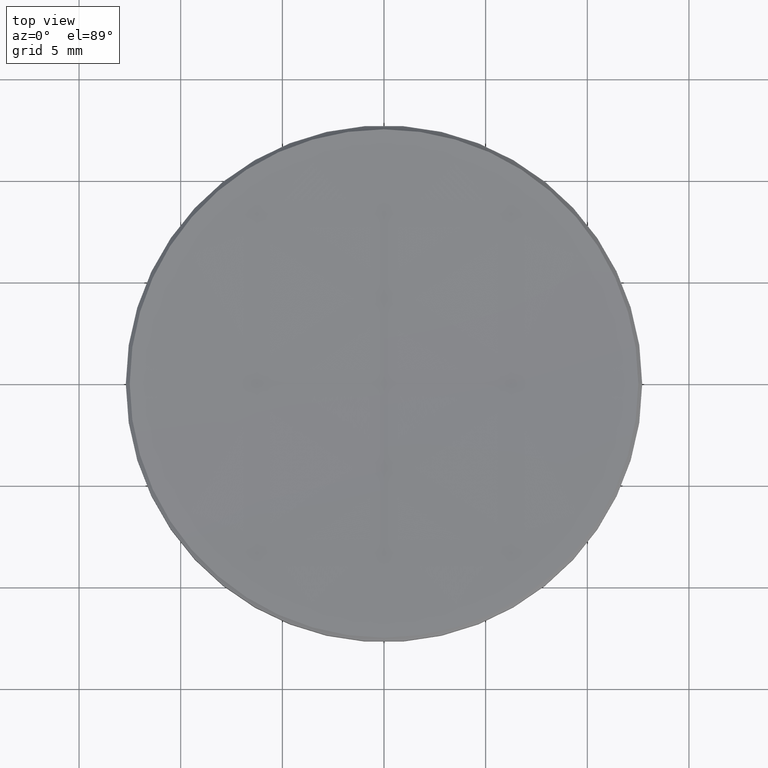
[diagram: clean part render]
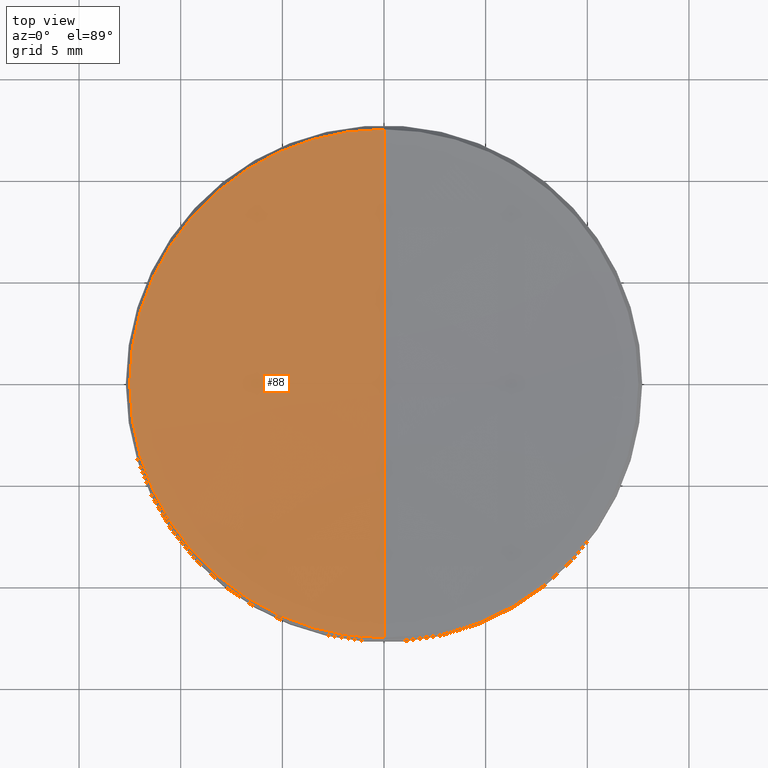
[diagram: same view with one face highlighted and labeled with its STEP entity id]
A machine part, top view. The second image highlights one B-rep face of the part: STEP entity #88.
In plain terms, the highlighted spherical surface has radius 288.2 mm.
Its self-contained STEP definition (entity closure, byte-faithful):
#13 = VERTEX_POINT ( 'NONE', #19 ) ;
#17 = AXIS2_PLACEMENT_3D ( 'NONE', #102, #218, #144 ) ;
#19 = CARTESIAN_POINT ( 'NONE',  ( -1.531835735252623078E-15, -12.50838802109430148, 5.991611978905075908 ) ) ;
#37 = ORIENTED_EDGE ( 'NONE', *, *, #239, .F. ) ;
#38 = VERTEX_POINT ( 'NONE', #48 ) ;
#39 = CIRCLE ( 'NONE', #84, 12.50838802109486103 ) ;
#40 = ORIENTED_EDGE ( 'NONE', *, *, #259, .T. ) ;
#41 = EDGE_LOOP ( 'NONE', ( #37, #40, #292, #222 ) ) ;
#48 = CARTESIAN_POINT ( 'NONE',  ( -12.50838802109486103, 0.000000000000000000, 5.991611978905075908 ) ) ;
#49 = DIRECTION ( 'NONE',  ( 0.000000000000000000, 0.000000000000000000, -1.000000000000000000 ) ) ;
#53 = CARTESIAN_POINT ( 'NONE',  ( 0.000000000000000000, 12.50838802109430148, 5.991611978905075908 ) ) ;
#58 = EDGE_CURVE ( 'NONE', #38, #13, #158, .T. ) ;
#74 = DIRECTION ( 'NONE',  ( 0.000000000000000000, 1.000000000000000000, 0.000000000000000000 ) ) ;
#81 = CARTESIAN_POINT ( 'NONE',  ( 0.000000000000000000, 0.000000000000000000, 5.991611978905075908 ) ) ;
#84 = AXIS2_PLACEMENT_3D ( 'NONE', #81, #229, #175 ) ;
#88 = ADVANCED_FACE ( 'NONE', ( #100 ), #329, .F. ) ;
#100 = FACE_OUTER_BOUND ( 'NONE', #41, .T. ) ;
#101 = DIRECTION ( 'NONE',  ( -1.224646799147353207E-16, -1.000000000000000000, 0.000000000000000000 ) ) ;
#102 = CARTESIAN_POINT ( 'NONE',  ( 0.000000000000000000, 0.000000000000000000, 5.991611978905075908 ) ) ;
#120 = AXIS2_PLACEMENT_3D ( 'NONE', #295, #169, #74 ) ;
#123 = CARTESIAN_POINT ( 'NONE',  ( 0.000000000000000000, 0.000000000000000000, 293.9200409836037124 ) ) ;
#129 = AXIS2_PLACEMENT_3D ( 'NONE', #281, #172, #101 ) ;
#144 = DIRECTION ( 'NONE',  ( 1.000000000000000000, 0.000000000000000000, 0.000000000000000000 ) ) ;
#158 = CIRCLE ( 'NONE', #17, 12.50838802109486103 ) ;
#169 = DIRECTION ( 'NONE',  ( -1.000000000000000000, 0.000000000000000000, 0.000000000000000000 ) ) ;
#170 = CIRCLE ( 'NONE', #317, 288.1999999999999886 ) ;
#172 = DIRECTION ( 'NONE',  ( -1.000000000000000000, 1.224646799147353207E-16, 0.000000000000000000 ) ) ;
#175 = DIRECTION ( 'NONE',  ( 1.000000000000000000, 0.000000000000000000, 0.000000000000000000 ) ) ;
#213 = CIRCLE ( 'NONE', #129, 288.1999999999999886 ) ;
#215 = VERTEX_POINT ( 'NONE', #238 ) ;
#218 = DIRECTION ( 'NONE',  ( -0.000000000000000000, -0.000000000000000000, 1.000000000000000000 ) ) ;
#222 = ORIENTED_EDGE ( 'NONE', *, *, #58, .T. ) ;
#229 = DIRECTION ( 'NONE',  ( -0.000000000000000000, -0.000000000000000000, 1.000000000000000000 ) ) ;
#238 = CARTESIAN_POINT ( 'NONE',  ( 0.000000000000000000, 1.764716037571336072E-14, 5.720040983603680296 ) ) ;
#239 = EDGE_CURVE ( 'NONE', #215, #13, #213, .T. ) ;
#243 = VERTEX_POINT ( 'NONE', #53 ) ;
#258 = DIRECTION ( 'NONE',  ( 1.000000000000000000, 0.000000000000000000, 0.000000000000000000 ) ) ;
#259 = EDGE_CURVE ( 'NONE', #215, #243, #170, .T. ) ;
#281 = CARTESIAN_POINT ( 'NONE',  ( 0.000000000000000000, 0.000000000000000000, 293.9200409836037124 ) ) ;
#292 = ORIENTED_EDGE ( 'NONE', *, *, #315, .T. ) ;
#295 = CARTESIAN_POINT ( 'NONE',  ( 0.000000000000000000, 0.000000000000000000, 293.9200409836037124 ) ) ;
#315 = EDGE_CURVE ( 'NONE', #243, #38, #39, .T. ) ;
#317 = AXIS2_PLACEMENT_3D ( 'NONE', #123, #258, #49 ) ;
#329 = SPHERICAL_SURFACE ( 'NONE', #120, 288.1999999999999886 ) ;